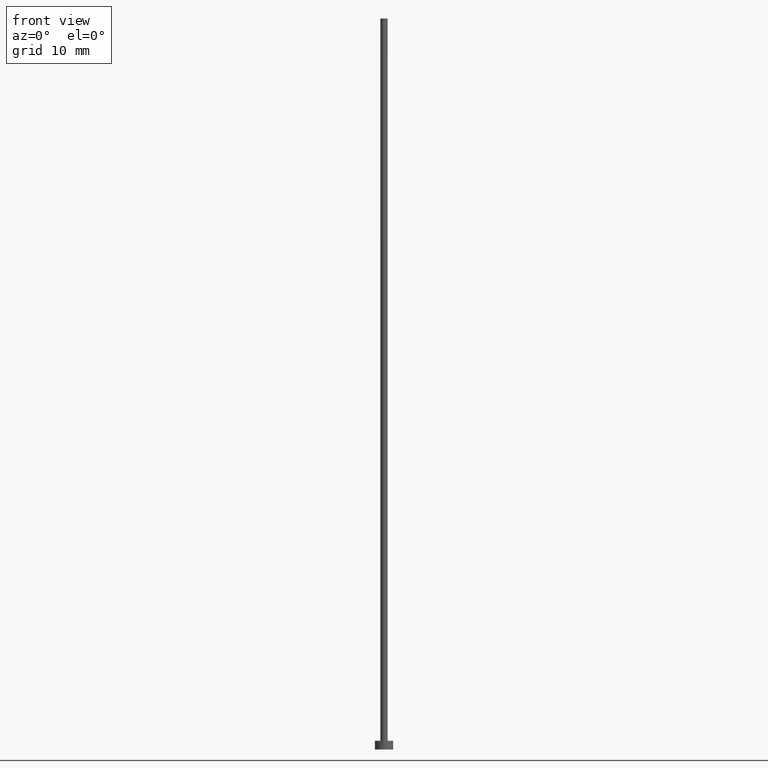
[diagram: clean part render]
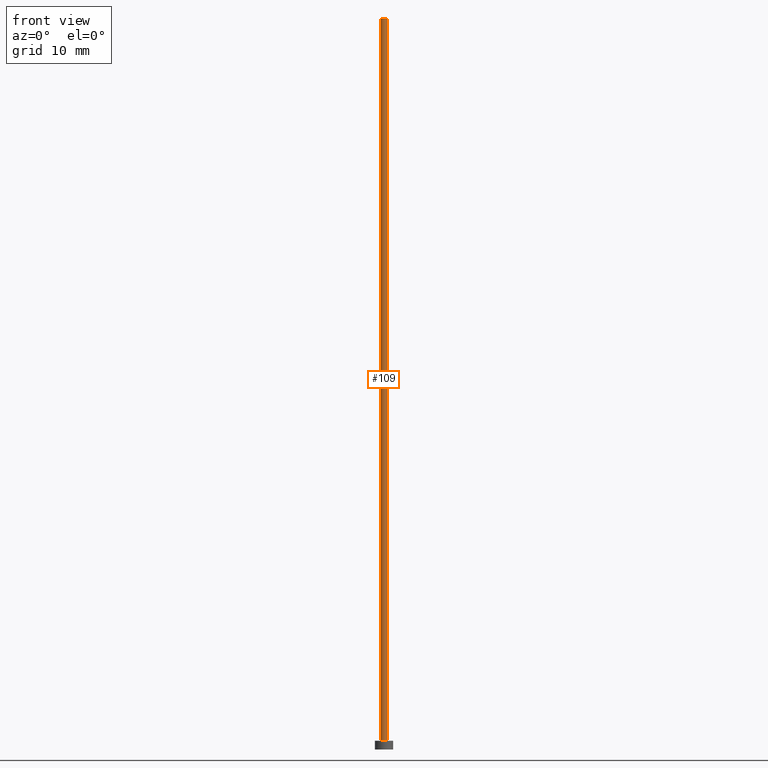
[diagram: same view with one face highlighted and labeled with its STEP entity id]
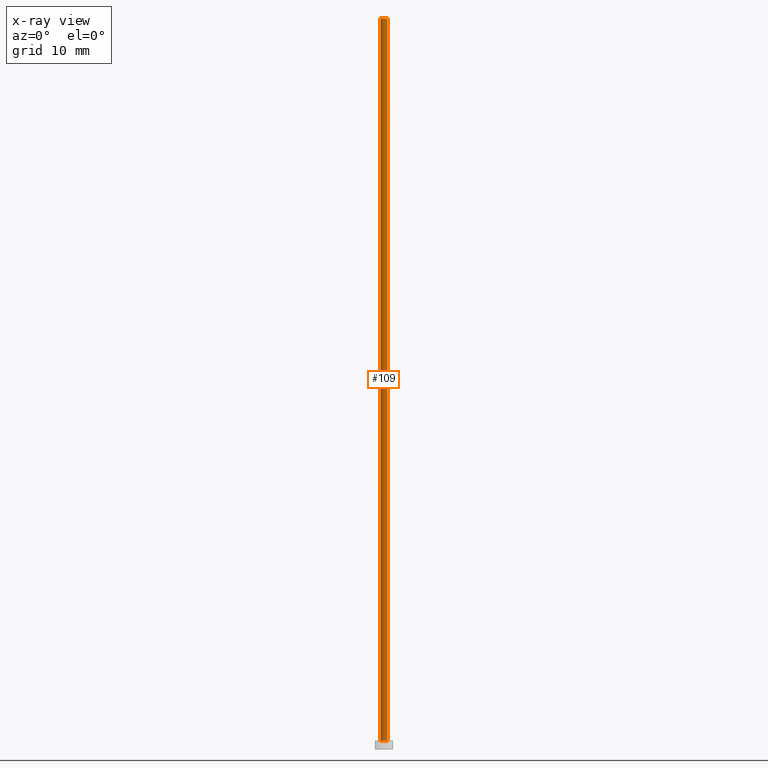
[diagram: x-ray of the same camera — body ghosted, the highlighted face saturated]
A machine part, front view. The second image highlights one B-rep face of the part: STEP entity #109.
The next image is the same camera in x-ray: the body ghosted, the highlighted face saturated — about 0% of this face is hidden behind the body in this view.
In plain terms, the highlighted cylindrical surface (edge-blend (fillet) strip) has radius 0.5 mm, axis along (-0, -0, -1).
Its self-contained STEP definition (entity closure, byte-faithful):
#5 = ORIENTED_EDGE ( 'NONE', *, *, #233, .T. ) ;
#6 = CARTESIAN_POINT ( 'NONE',  ( -0.5000000000000000000, 0.000000000000000000, 100.0000000000000000 ) ) ;
#10 = EDGE_CURVE ( 'NONE', #25, #229, #172, .T. ) ;
#17 = FACE_OUTER_BOUND ( 'NONE', #112, .T. ) ;
#21 = DIRECTION ( 'NONE',  ( -1.000000000000000000, 0.000000000000000000, 0.000000000000000000 ) ) ;
#25 = VERTEX_POINT ( 'NONE', #6 ) ;
#39 = DIRECTION ( 'NONE',  ( -0.000000000000000000, -0.000000000000000000, -1.000000000000000000 ) ) ;
#42 = AXIS2_PLACEMENT_3D ( 'NONE', #101, #142, #214 ) ;
#50 = ORIENTED_EDGE ( 'NONE', *, *, #186, .T. ) ;
#54 = LINE ( 'NONE', #251, #67 ) ;
#56 = DIRECTION ( 'NONE',  ( -0.000000000000000000, -0.000000000000000000, -1.000000000000000000 ) ) ;
#67 = VECTOR ( 'NONE', #166, 1000.000000000000000 ) ;
#70 = VERTEX_POINT ( 'NONE', #82 ) ;
#79 = AXIS2_PLACEMENT_3D ( 'NONE', #176, #197, #244 ) ;
#81 = EDGE_CURVE ( 'NONE', #229, #227, #54, .T. ) ;
#82 = CARTESIAN_POINT ( 'NONE',  ( -0.5000000000000000000, 0.000000000000000000, 1.199999999999999956 ) ) ;
#93 = ORIENTED_EDGE ( 'NONE', *, *, #10, .F. ) ;
#100 = CYLINDRICAL_SURFACE ( 'NONE', #189, 0.5000000000000000000 ) ;
#101 = CARTESIAN_POINT ( 'NONE',  ( 0.000000000000000000, 0.000000000000000000, 1.199999999999999956 ) ) ;
#109 = ADVANCED_FACE ( 'NONE', ( #17 ), #100, .T. ) ;
#112 = EDGE_LOOP ( 'NONE', ( #210, #93, #50, #5 ) ) ;
#129 = CIRCLE ( 'NONE', #42, 0.5000000000000000000 ) ;
#142 = DIRECTION ( 'NONE',  ( 0.000000000000000000, 0.000000000000000000, 1.000000000000000000 ) ) ;
#146 = CARTESIAN_POINT ( 'NONE',  ( 0.5000000000000000000, 6.123233995736766036E-17, 100.0000000000000000 ) ) ;
#166 = DIRECTION ( 'NONE',  ( -0.000000000000000000, -0.000000000000000000, -1.000000000000000000 ) ) ;
#172 = CIRCLE ( 'NONE', #79, 0.5000000000000000000 ) ;
#176 = CARTESIAN_POINT ( 'NONE',  ( 0.000000000000000000, 0.000000000000000000, 100.0000000000000000 ) ) ;
#180 = CARTESIAN_POINT ( 'NONE',  ( 0.000000000000000000, 0.000000000000000000, 100.0000000000000000 ) ) ;
#186 = EDGE_CURVE ( 'NONE', #25, #70, #217, .T. ) ;
#189 = AXIS2_PLACEMENT_3D ( 'NONE', #180, #39, #21 ) ;
#197 = DIRECTION ( 'NONE',  ( 0.000000000000000000, 0.000000000000000000, 1.000000000000000000 ) ) ;
#198 = CARTESIAN_POINT ( 'NONE',  ( -0.5000000000000000000, 0.000000000000000000, 100.0000000000000000 ) ) ;
#206 = VECTOR ( 'NONE', #56, 1000.000000000000000 ) ;
#210 = ORIENTED_EDGE ( 'NONE', *, *, #81, .F. ) ;
#214 = DIRECTION ( 'NONE',  ( 1.000000000000000000, 0.000000000000000000, 0.000000000000000000 ) ) ;
#217 = LINE ( 'NONE', #198, #206 ) ;
#227 = VERTEX_POINT ( 'NONE', #231 ) ;
#229 = VERTEX_POINT ( 'NONE', #146 ) ;
#231 = CARTESIAN_POINT ( 'NONE',  ( 0.5000000000000000000, 6.123233995736766036E-17, 1.199999999999999956 ) ) ;
#233 = EDGE_CURVE ( 'NONE', #70, #227, #129, .T. ) ;
#244 = DIRECTION ( 'NONE',  ( 1.000000000000000000, 0.000000000000000000, 0.000000000000000000 ) ) ;
#251 = CARTESIAN_POINT ( 'NONE',  ( 0.5000000000000000000, 6.123233995736766036E-17, 100.0000000000000000 ) ) ;